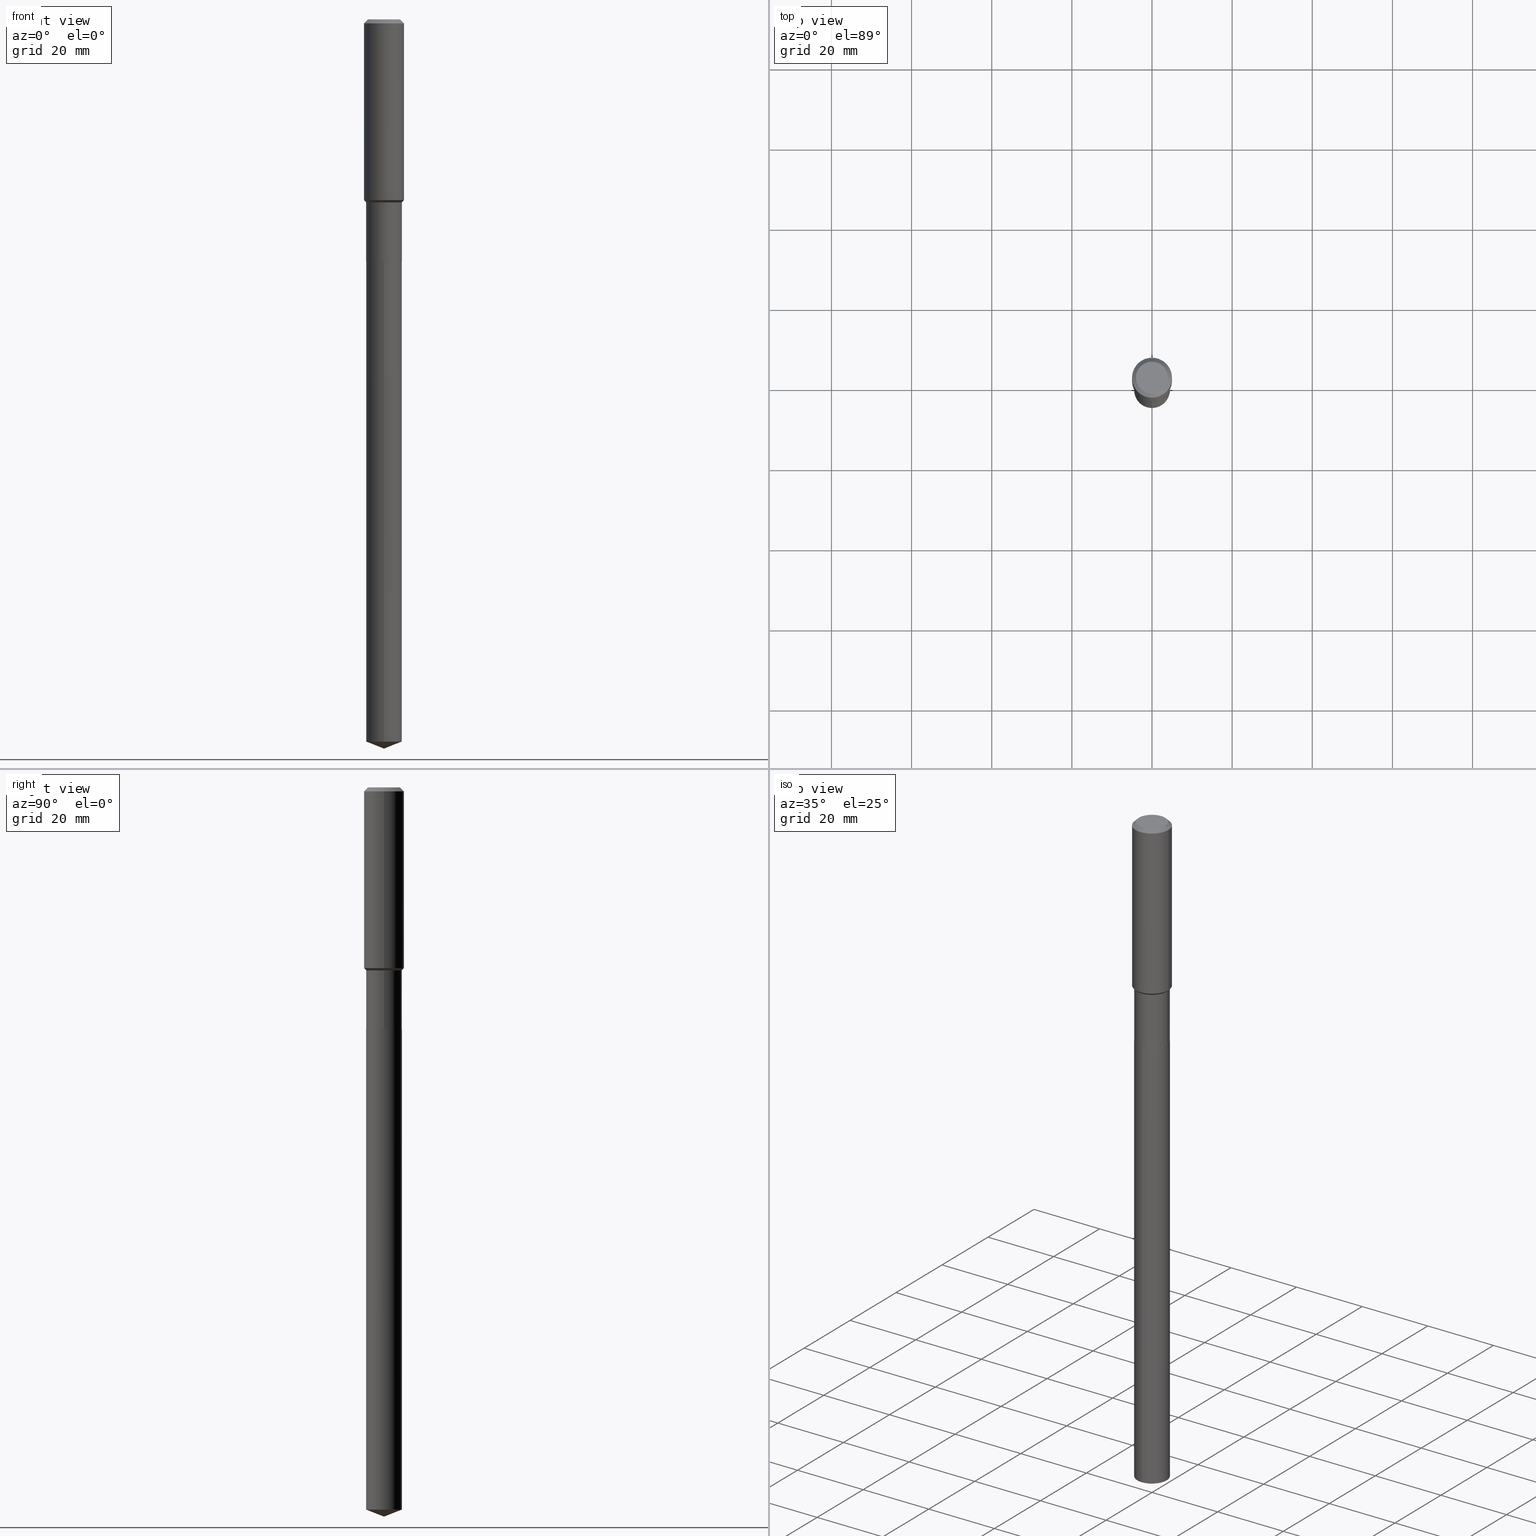
[diagram: canonical four-view strip — front | top / right | iso, engineering-drawing reading convention]
A machine part, canonical four-view strip (front | top / right | iso — engineering-drawing reading convention). The complete STEP part file that produces these views, byte-faithful:
ISO-10303-21;
HEADER;
FILE_DESCRIPTION (( 'STEP AP203' ),
    '1' );
FILE_NAME ('66768.STEP',
    '2024-04-25T05:43:46',
    ( '' ),
    ( '' ),
    'SwSTEP 2.0',
    'SolidWorks 2023',
    '' );
FILE_SCHEMA (( 'CONFIG_CONTROL_DESIGN' ));
ENDSEC;

DATA;
#1 = CARTESIAN_POINT ( 'NONE',  ( -0.1968500000000000250, -1.770025428536726252E-15, -0.03937000000000024508 ) ) ;
#2 = CONICAL_SURFACE ( 'NONE', #235, 0.1968500000000000250, 0.7853981633974452814 ) ;
#3 = PERSON_AND_ORGANIZATION_ROLE ( 'classification_officer' ) ;
#4 = EDGE_CURVE ( 'NONE', #370, #41, #321, .T. ) ;
#5 = APPROVAL_DATE_TIME ( #452, #36 ) ;
#6 = FACE_OUTER_BOUND ( 'NONE', #490, .T. ) ;
#7 = CIRCLE ( 'NONE', #203, 0.1968500000000002192 ) ;
#8 = CC_DESIGN_PERSON_AND_ORGANIZATION_ASSIGNMENT ( #225, #303, ( #115 ) ) ;
#9 = APPROVAL_PERSON_ORGANIZATION ( #373, #378, #338 ) ;
#10 = EDGE_CURVE ( 'NONE', #47, #386, #188, .T. ) ;
#11 = CARTESIAN_POINT ( 'NONE',  ( 0.1751999999999999391, -7.499003619567302609E-15, -1.797399999999999887 ) ) ;
#12 = DATE_AND_TIME ( #189, #40 ) ;
#13 = DIRECTION ( 'NONE',  ( -6.982962677686265133E-15, -1.000000000000000000, 3.118547937972903315E-15 ) ) ;
#14 = FACE_OUTER_BOUND ( 'NONE', #264, .T. ) ;
#15 = CARTESIAN_POINT ( 'NONE',  ( 4.395485632237163419E-29, -6.275588558436669520E-15, -1.797399999999999887 ) ) ;
#16 = DIRECTION ( 'NONE',  ( 6.611014441532060278E-15, 0.9304175679820263500, 0.3665012267242928057 ) ) ;
#17 = PERSON_AND_ORGANIZATION_ROLE ( 'design_owner' ) ;
#18 = ORIENTED_EDGE ( 'NONE', *, *, #389, .T. ) ;
#19 = CARTESIAN_POINT ( 'NONE',  ( 0.1746999999999999942, -9.514286648347568370E-15, -2.375600000000000378 ) ) ;
#20 = CC_DESIGN_APPROVAL ( #103, ( #115 ) ) ;
#21 = EDGE_CURVE ( 'NONE', #408, #461, #274, .T. ) ;
#22 = LINE ( 'NONE', #98, #194 ) ;
#23 = ORIENTED_EDGE ( 'NONE', *, *, #99, .F. ) ;
#24 = DIRECTION ( 'NONE',  ( -2.445468806185136877E-29, 3.491481338843145188E-15, 1.000000000000000000 ) ) ;
#25 = PERSON_AND_ORGANIZATION ( #355, #244 ) ;
#26 = VECTOR ( 'NONE', #297, 39.37007874015748143 ) ;
#27 = LOCAL_TIME ( 1, 43, 46.00000000000000000, #422 ) ;
#28 = DIRECTION ( 'NONE',  ( 1.000000000000000000, -6.982962677686266711E-15, 4.876176775795935793E-29 ) ) ;
#29 = DIRECTION ( 'NONE',  ( -2.445468806185136597E-29, 3.491481338843145583E-15, 1.000000000000000000 ) ) ;
#30 = EDGE_CURVE ( 'NONE', #291, #386, #336, .T. ) ;
#31 = ORIENTED_EDGE ( 'NONE', *, *, #105, .T. ) ;
#32 = APPROVAL_STATUS ( 'not_yet_approved' ) ;
#33 = ORIENTED_EDGE ( 'NONE', *, *, #476, .F. ) ;
#34 = PERSON_AND_ORGANIZATION ( #355, #244 ) ;
#35 = EDGE_LOOP ( 'NONE', ( #23, #158, #288, #142 ) ) ;
#36 = APPROVAL ( #32, 'UNSPECIFIED' ) ;
#37 = AXIS2_PLACEMENT_3D ( 'NONE', #348, #307, #465 ) ;
#38 = CIRCLE ( 'NONE', #316, 0.1751999999999999946 ) ;
#39 = PERSON_AND_ORGANIZATION ( #355, #244 ) ;
#40 = LOCAL_TIME ( 1, 43, 46.00000000000000000, #252 ) ;
#41 = VERTEX_POINT ( 'NONE', #44 ) ;
#42 = APPROVAL_STATUS ( 'not_yet_approved' ) ;
#43 = ORIENTED_EDGE ( 'NONE', *, *, #45, .F. ) ;
#44 = CARTESIAN_POINT ( 'NONE',  ( -0.1968500000000002192, -4.801294612106955500E-15, -1.775749999999999496 ) ) ;
#45 = EDGE_CURVE ( 'NONE', #326, #116, #467, .T. ) ;
#46 = CARTESIAN_POINT ( 'NONE',  ( 9.627810689950943645E-31, -1.374596203102555315E-16, -0.03937000000000024508 ) ) ;
#47 = VERTEX_POINT ( 'NONE', #469 ) ;
#48 = CARTESIAN_POINT ( 'NONE',  ( -0.1968500000000001082, 1.398703375343757985E-15, -9.682923725166787881E-30 ) ) ;
#49 = AXIS2_PLACEMENT_3D ( 'NONE', #15, #138, #438 ) ;
#50 = AXIS2_PLACEMENT_3D ( 'NONE', #92, #304, #231 ) ;
#51 = FACE_OUTER_BOUND ( 'NONE', #420, .T. ) ;
#52 = CARTESIAN_POINT ( 'NONE',  ( 4.395485632237163419E-29, -6.275588558436669520E-15, -1.797399999999999887 ) ) ;
#53 = DIRECTION ( 'NONE',  ( 2.445468806185136597E-29, -3.491481338843145583E-15, -1.000000000000000000 ) ) ;
#54 = DIRECTION ( 'NONE',  ( -2.445468806185136597E-29, 3.491481338843145583E-15, 1.000000000000000000 ) ) ;
#55 = MANIFOLD_SOLID_BREP ( 'Body-Move/Copy2[1]', #168 ) ;
#56 = DIRECTION ( 'NONE',  ( -2.438088387897960049E-29, 3.491481338843145188E-15, 1.000000000000000000 ) ) ;
#57 = DIRECTION ( 'NONE',  ( 2.445468806185136597E-29, -3.491481338843145583E-15, -1.000000000000000000 ) ) ;
#58 = AXIS2_PLACEMENT_3D ( 'NONE', #357, #312, #64 ) ;
#59 = CYLINDRICAL_SURFACE ( 'NONE', #433, 0.1968500000000001082 ) ;
#60 = FACE_OUTER_BOUND ( 'NONE', #464, .T. ) ;
#61 = DIRECTION ( 'NONE',  ( 1.000000000000000000, -6.982962677686265922E-15, 0.000000000000000000 ) ) ;
#62 = DIRECTION ( 'NONE',  ( 0.000000000000000000, 0.000000000000000000, 1.000000000000000000 ) ) ;
#63 = DIRECTION ( 'NONE',  ( 1.000000000000000000, -6.982962677686265922E-15, 4.876176775795935793E-29 ) ) ;
#64 = DIRECTION ( 'NONE',  ( -6.982962677686265133E-15, -1.000000000000000000, 3.118547937972903315E-15 ) ) ;
#65 = ORIENTED_EDGE ( 'NONE', *, *, #234, .T. ) ;
#66 = DIRECTION ( 'NONE',  ( -6.982962677686265133E-15, -1.000000000000000000, 3.118547937972903315E-15 ) ) ;
#67 = DIRECTION ( 'NONE',  ( -2.445468806185136597E-29, 3.491481338843145583E-15, 1.000000000000000000 ) ) ;
#68 = AXIS2_PLACEMENT_3D ( 'NONE', #208, #391, #13 ) ;
#69 = VERTEX_POINT ( 'NONE', #392 ) ;
#70 = ORIENTED_EDGE ( 'NONE', *, *, #205, .F. ) ;
#71 = CC_DESIGN_DATE_AND_TIME_ASSIGNMENT ( #80, #379, ( #87 ) ) ;
#72 = CARTESIAN_POINT ( 'NONE',  ( 0.1968500000000000250, -1.487948651171581601E-15, -0.03937000000000024508 ) ) ;
#73 = CARTESIAN_POINT ( 'NONE',  ( 5.809455695973411003E-29, -8.294363068555777500E-15, -2.375600000000000378 ) ) ;
#74 = APPLICATION_PROTOCOL_DEFINITION ( 'international standard', 'config_control_design', 1994, #334 ) ;
#75 = EDGE_CURVE ( 'NONE', #113, #370, #395, .T. ) ;
#76 = FACE_OUTER_BOUND ( 'NONE', #35, .T. ) ;
#77 = AXIS2_PLACEMENT_3D ( 'NONE', #305, #430, #101 ) ;
#78 = FACE_OUTER_BOUND ( 'NONE', #340, .T. ) ;
#79 = ORIENTED_EDGE ( 'NONE', *, *, #234, .F. ) ;
#80 = DATE_AND_TIME ( #156, #27 ) ;
#81 = EDGE_CURVE ( 'NONE', #461, #372, #38, .T. ) ;
#82 = ORIENTED_EDGE ( 'NONE', *, *, #296, .F. ) ;
#83 = PERSON_AND_ORGANIZATION ( #355, #244 ) ;
#84 = PRODUCT_DEFINITION_SHAPE ( 'NONE', 'NONE',  #131 ) ;
#85 = APPLICATION_CONTEXT ( 'configuration controlled 3d designs of mechanical parts and assemblies' ) ;
#86 = AXIS2_PLACEMENT_3D ( 'NONE', #475, #352, #233 ) ;
#87 = SECURITY_CLASSIFICATION ( '', '', #251 ) ;
#88 = APPROVAL_ROLE ( '' ) ;
#89 = DIRECTION ( 'NONE',  ( -2.445443136615839806E-29, 3.491518099127399075E-15, 1.000000000000000000 ) ) ;
#90 = FACE_OUTER_BOUND ( 'NONE', #177, .T. ) ;
#91 = APPROVAL_DATE_TIME ( #456, #378 ) ;
#92 = CARTESIAN_POINT ( 'NONE',  ( -7.875562778866199937E-28, 1.124447026328141436E-13, 32.20507874015748229 ) ) ;
#93 = ORIENTED_EDGE ( 'NONE', *, *, #228, .T. ) ;
#94 = DIRECTION ( 'NONE',  ( -2.445468806185136597E-29, 3.491481338843145583E-15, 1.000000000000000000 ) ) ;
#95 = EDGE_LOOP ( 'NONE', ( #250, #193 ) ) ;
#96 = CARTESIAN_POINT ( 'NONE',  ( -1.223415061130575699E-15, -0.1752000000000082935, -2.375599999999999490 ) ) ;
#97 = CIRCLE ( 'NONE', #276, 0.1574800000000000089 ) ;
#98 = CARTESIAN_POINT ( 'NONE',  ( 0.1751999999999999391, -7.499003619567302609E-15, -1.797399999999999887 ) ) ;
#99 = EDGE_CURVE ( 'NONE', #41, #116, #119, .T. ) ;
#100 = PLANE ( 'NONE',  #86 ) ;
#101 = DIRECTION ( 'NONE',  ( 1.000000000000000000, -6.982962677686265922E-15, 0.000000000000000000 ) ) ;
#102 = VECTOR ( 'NONE', #331, 39.37007874015748143 ) ;
#103 = APPROVAL ( #341, 'UNSPECIFIED' ) ;
#104 = ORIENTED_EDGE ( 'NONE', *, *, #296, .T. ) ;
#105 = EDGE_CURVE ( 'NONE', #265, #372, #187, .T. ) ;
#106 = DIRECTION ( 'NONE',  ( -2.445443136615840087E-29, 3.491518099127399469E-15, 1.000000000000000000 ) ) ;
#107 = LINE ( 'NONE', #399, #324 ) ;
#108 = CARTESIAN_POINT ( 'NONE',  ( 5.809455695973411003E-29, -8.294363068555777500E-15, -2.375600000000000378 ) ) ;
#109 = CC_DESIGN_PERSON_AND_ORGANIZATION_ASSIGNMENT ( #39, #257, ( #115 ) ) ;
#110 = DIRECTION ( 'NONE',  ( 1.000000000000000000, -6.982962677686265922E-15, 4.876223630392693006E-29 ) ) ;
#111 = AXIS2_PLACEMENT_3D ( 'NONE', #366, #62, #323 ) ;
#112 = CARTESIAN_POINT ( 'NONE',  ( 5.808232961570318202E-29, -8.292617327886355207E-15, -2.375100000000000211 ) ) ;
#113 = VERTEX_POINT ( 'NONE', #11 ) ;
#114 = CARTESIAN_POINT ( 'NONE',  ( 0.000000000000000000, 0.000000000000000000, 0.000000000000000000 ) ) ;
#115 = PRODUCT_DEFINITION_FORMATION_WITH_SPECIFIED_SOURCE ( 'ANY', '', #120, .NOT_KNOWN. ) ;
#116 = VERTEX_POINT ( 'NONE', #1 ) ;
#117 = EDGE_CURVE ( 'NONE', #47, #113, #121, .T. ) ;
#118 = CARTESIAN_POINT ( 'NONE',  ( 4.395485632237163419E-29, -6.275588558436669520E-15, -1.797399999999999887 ) ) ;
#119 = LINE ( 'NONE', #48, #241 ) ;
#120 = PRODUCT ( '66768', '66768', '', ( #484 ) ) ;
#121 = LINE ( 'NONE', #418, #153 ) ;
#122 = CIRCLE ( 'NONE', #249, 0.1751999999999999946 ) ;
#123 = DIRECTION ( 'NONE',  ( -2.445468806185136597E-29, 3.491481338843145583E-15, 1.000000000000000000 ) ) ;
#124 = CC_DESIGN_PERSON_AND_ORGANIZATION_ASSIGNMENT ( #207, #17, ( #120 ) ) ;
#125 = EDGE_LOOP ( 'NONE', ( #417, #436, #149, #474 ) ) ;
#126 = LINE ( 'NONE', #262, #401 ) ;
#127 = DIRECTION ( 'NONE',  ( 1.000000000000000000, -6.982962677686265922E-15, 0.000000000000000000 ) ) ;
#128 = ORIENTED_EDGE ( 'NONE', *, *, #10, .T. ) ;
#129 = AXIS2_PLACEMENT_3D ( 'NONE', #181, #140, #407 ) ;
#130 = VECTOR ( 'NONE', #292, 39.37007874015748143 ) ;
#131 = PRODUCT_DEFINITION ( 'UNKNOWN', '', #115, #200 ) ;
#132 = FACE_OUTER_BOUND ( 'NONE', #328, .T. ) ;
#133 = FACE_OUTER_BOUND ( 'NONE', #385, .T. ) ;
#134 = CARTESIAN_POINT ( 'NONE',  ( -0.1751999999999999391, -6.039232070109816285E-15, -1.797399999999999887 ) ) ;
#135 = DIRECTION ( 'NONE',  ( 1.000000000000000000, -6.982962677686265922E-15, 0.000000000000000000 ) ) ;
#136 = CARTESIAN_POINT ( 'NONE',  ( 0.000000000000000000, 0.000000000000000000, 0.000000000000000000 ) ) ;
#137 = ADVANCED_FACE ( 'NONE', ( #90 ), #381, .F. ) ;
#138 = DIRECTION ( 'NONE',  ( -2.445468806185136597E-29, 3.491481338843145583E-15, 1.000000000000000000 ) ) ;
#139 = AXIS2_PLACEMENT_3D ( 'NONE', #52, #196, #400 ) ;
#140 = DIRECTION ( 'NONE',  ( -2.445443136615840087E-29, 3.491518099127399469E-15, 1.000000000000000000 ) ) ;
#141 =( GEOMETRIC_REPRESENTATION_CONTEXT ( 3 ) GLOBAL_UNCERTAINTY_ASSIGNED_CONTEXT ( ( #162 ) ) GLOBAL_UNIT_ASSIGNED_CONTEXT ( ( #213, #368, #273 ) ) REPRESENTATION_CONTEXT ( 'NONE', 'WORKASPACE' ) );
#142 = ORIENTED_EDGE ( 'NONE', *, *, #212, .F. ) ;
#143 = CC_DESIGN_PERSON_AND_ORGANIZATION_ASSIGNMENT ( #34, #3, ( #87 ) ) ;
#144 = CC_DESIGN_PERSON_AND_ORGANIZATION_ASSIGNMENT ( #415, #155, ( #131 ) ) ;
#145 = CARTESIAN_POINT ( 'NONE',  ( -9.427742298522567634E-47, 1.346031739168368355E-32, 3.855188123715870730E-18 ) ) ;
#146 = CIRCLE ( 'NONE', #222, 0.1746999999999999942 ) ;
#147 = CC_DESIGN_APPROVAL ( #378, ( #87 ) ) ;
#148 = ORIENTED_EDGE ( 'NONE', *, *, #224, .T. ) ;
#149 = ORIENTED_EDGE ( 'NONE', *, *, #426, .T. ) ;
#150 = APPLICATION_PROTOCOL_DEFINITION ( 'international standard', 'config_control_design', 1994, #85 ) ;
#151 = ORIENTED_EDGE ( 'NONE', *, *, #117, .F. ) ;
#152 = ORIENTED_EDGE ( 'NONE', *, *, #205, .T. ) ;
#153 = VECTOR ( 'NONE', #256, 39.37007874015748143 ) ;
#154 = LOCAL_TIME ( 1, 43, 46.00000000000000000, #462 ) ;
#155 = PERSON_AND_ORGANIZATION_ROLE ( 'creator' ) ;
#156 = CALENDAR_DATE ( 2024, 25, 4 ) ;
#157 = DIRECTION ( 'NONE',  ( -6.982962677686265133E-15, -1.000000000000000000, 6.237095875945806629E-15 ) ) ;
#158 = ORIENTED_EDGE ( 'NONE', *, *, #314, .T. ) ;
#159 = CARTESIAN_POINT ( 'NONE',  ( -0.1746999999999999942, -7.053044909182881925E-15, -2.375600000000000378 ) ) ;
#160 = COORDINATED_UNIVERSAL_TIME_OFFSET ( 5, 0, .BEHIND. ) ;
#161 = EDGE_LOOP ( 'NONE', ( #429, #329, #70, #82 ) ) ;
#162 = UNCERTAINTY_MEASURE_WITH_UNIT (LENGTH_MEASURE( 1.000000000000000082E-05 ), #213, 'distance_accuracy_value', 'NONE');
#163 = VECTOR ( 'NONE', #24, 39.37007874015748143 ) ;
#164 = AXIS2_PLACEMENT_3D ( 'NONE', #272, #437, #239 ) ;
#165 = DIRECTION ( 'NONE',  ( -2.445468806185136597E-29, 3.491481338843145583E-15, 1.000000000000000000 ) ) ;
#166 = ADVANCED_FACE ( 'NONE', ( #396 ), #59, .T. ) ;
#167 = DIRECTION ( 'NONE',  ( -6.497071151882113525E-15, -0.9304175679820235745, 0.3665012267242993560 ) ) ;
#168 = CLOSED_SHELL ( 'NONE', ( #411, #383, #359, #302, #454 ) ) ;
#169 = AXIS2_PLACEMENT_3D ( 'NONE', #457, #123, #192 ) ;
#170 = VERTEX_POINT ( 'NONE', #202 ) ;
#171 = DIRECTION ( 'NONE',  ( 1.000000000000000000, -6.982962677686266711E-15, 4.876176775795935793E-29 ) ) ;
#172 = LINE ( 'NONE', #325, #367 ) ;
#173 = ADVANCED_FACE ( 'NONE', ( #14 ), #387, .T. ) ;
#174 = CARTESIAN_POINT ( 'NONE',  ( 5.809455695973411003E-29, -8.294363068555777500E-15, -2.375600000000000378 ) ) ;
#175 = CARTESIAN_POINT ( 'NONE',  ( -0.1751999999999999391, -5.030717685384973836E-15, -1.797399999999999887 ) ) ;
#176 = AXIS2_PLACEMENT_3D ( 'NONE', #463, #199, #135 ) ;
#177 = EDGE_LOOP ( 'NONE', ( #446, #460 ) ) ;
#178 = PLANE ( 'NONE',  #346 ) ;
#179 = DIRECTION ( 'NONE',  ( 1.000000000000000000, -6.982962677686265922E-15, 0.000000000000000000 ) ) ;
#180 = ORIENTED_EDGE ( 'NONE', *, *, #442, .T. ) ;
#181 = CARTESIAN_POINT ( 'NONE',  ( 1.735289340526662042E-28, -2.477567931127258058E-14, -7.095986884672262462 ) ) ;
#182 = VECTOR ( 'NONE', #89, 39.37007874015748143 ) ;
#183 = AXIS2_PLACEMENT_3D ( 'NONE', #114, #258, #419 ) ;
#184 = LINE ( 'NONE', #327, #130 ) ;
#185 = ADVANCED_FACE ( 'NONE', ( #263 ), #275, .T. ) ;
#186 = ORIENTED_EDGE ( 'NONE', *, *, #476, .T. ) ;
#187 = LINE ( 'NONE', #455, #102 ) ;
#188 = CIRCLE ( 'NONE', #361, 0.1752000000000000501 ) ;
#189 = CALENDAR_DATE ( 2024, 25, 4 ) ;
#190 = CARTESIAN_POINT ( 'NONE',  ( 0.1968500000000000250, -1.512055823412797189E-15, -0.03937000000000024508 ) ) ;
#191 = CALENDAR_DATE ( 2024, 25, 4 ) ;
#192 = DIRECTION ( 'NONE',  ( 1.000000000000000000, -6.982962677686265922E-15, 0.000000000000000000 ) ) ;
#193 = ORIENTED_EDGE ( 'NONE', *, *, #473, .T. ) ;
#194 = VECTOR ( 'NONE', #232, 39.37007874015748143 ) ;
#195 = CIRCLE ( 'NONE', #443, 0.1752000000000000501 ) ;
#196 = DIRECTION ( 'NONE',  ( -2.445468806185136597E-29, 3.491481338843145583E-15, 1.000000000000000000 ) ) ;
#197 = ADVANCED_FACE ( 'NONE', ( #266 ), #377, .T. ) ;
#198 = DIRECTION ( 'NONE',  ( -2.445468806185136597E-29, 3.491481338843145583E-15, 1.000000000000000000 ) ) ;
#199 = DIRECTION ( 'NONE',  ( -2.445468806185136597E-29, 3.491481338843145583E-15, 1.000000000000000000 ) ) ;
#200 = DESIGN_CONTEXT ( 'detailed design', #334, 'design' ) ;
#201 = PRODUCT_RELATED_PRODUCT_CATEGORY ( 'detail', '', ( #120 ) ) ;
#202 = CARTESIAN_POINT ( 'NONE',  ( 1.752160007385249322E-28, -2.501672718024781539E-14, -7.165000000000000036 ) ) ;
#203 = AXIS2_PLACEMENT_3D ( 'NONE', #347, #414, #375 ) ;
#204 = CARTESIAN_POINT ( 'NONE',  ( -0.1574800000000000089, 1.168406772637159618E-15, 3.855188123707939751E-18 ) ) ;
#205 = EDGE_CURVE ( 'NONE', #219, #41, #458, .T. ) ;
#206 = FACE_OUTER_BOUND ( 'NONE', #95, .T. ) ;
#207 = PERSON_AND_ORGANIZATION ( #355, #244 ) ;
#208 = CARTESIAN_POINT ( 'NONE',  ( 5.809455695973411003E-29, -8.294363068555777500E-15, -2.375600000000000378 ) ) ;
#209 = LINE ( 'NONE', #19, #268 ) ;
#210 = DIRECTION ( 'NONE',  ( -2.445468806185136597E-29, 3.491481338843145583E-15, 1.000000000000000000 ) ) ;
#211 = CIRCLE ( 'NONE', #300, 0.1746999999999999942 ) ;
#212 = EDGE_CURVE ( 'NONE', #116, #326, #345, .T. ) ;
#213 =( CONVERSION_BASED_UNIT ( 'INCH', #472 ) LENGTH_UNIT ( ) NAMED_UNIT ( #369 ) );
#214 = CYLINDRICAL_SURFACE ( 'NONE', #333, 0.1968500000000001082 ) ;
#215 = EDGE_CURVE ( 'NONE', #170, #265, #126, .T. ) ;
#216 = AXIS2_PLACEMENT_3D ( 'NONE', #118, #423, #339 ) ;
#217 = VERTEX_POINT ( 'NONE', #425 ) ;
#218 = ORIENTED_EDGE ( 'NONE', *, *, #332, .T. ) ;
#219 = VERTEX_POINT ( 'NONE', #466 ) ;
#220 = CARTESIAN_POINT ( 'NONE',  ( -0.1746999999999999942, -7.050395682008770724E-15, -2.375600000000000378 ) ) ;
#221 = ORIENTED_EDGE ( 'NONE', *, *, #215, .T. ) ;
#222 = AXIS2_PLACEMENT_3D ( 'NONE', #245, #29, #61 ) ;
#223 = APPROVAL_PERSON_ORGANIZATION ( #83, #103, #88 ) ;
#224 = EDGE_CURVE ( 'NONE', #370, #113, #450, .T. ) ;
#225 = PERSON_AND_ORGANIZATION ( #355, #244 ) ;
#226 = SHAPE_DEFINITION_REPRESENTATION ( #84, #364 ) ;
#227 = ORIENTED_EDGE ( 'NONE', *, *, #215, .F. ) ;
#228 = EDGE_CURVE ( 'NONE', #371, #116, #172, .T. ) ;
#229 = ORIENTED_EDGE ( 'NONE', *, *, #442, .F. ) ;
#230 = CC_DESIGN_APPROVAL ( #36, ( #131 ) ) ;
#231 = DIRECTION ( 'NONE',  ( -6.982962677686268288E-15, -1.000000000000000000, 3.498627837350029860E-15 ) ) ;
#232 = DIRECTION ( 'NONE',  ( 0.7071067811865469066, -2.468850131082250355E-15, 0.7071067811865481278 ) ) ;
#233 = DIRECTION ( 'NONE',  ( -1.000000000000000000, 6.982962677686265922E-15, -4.876176775795935793E-29 ) ) ;
#234 = EDGE_CURVE ( 'NONE', #408, #265, #427, .T. ) ;
#235 = AXIS2_PLACEMENT_3D ( 'NONE', #277, #57, #441 ) ;
#236 = APPROVAL_PERSON_ORGANIZATION ( #25, #36, #330 ) ;
#237 = DIRECTION ( 'NONE',  ( 1.000000000000000000, -6.982962677686266711E-15, 0.000000000000000000 ) ) ;
#238 = CYLINDRICAL_SURFACE ( 'NONE', #68, 0.1751999999999999946 ) ;
#239 = DIRECTION ( 'NONE',  ( -6.982962677686268288E-15, -1.000000000000000000, 3.498627837350029860E-15 ) ) ;
#240 = EDGE_CURVE ( 'NONE', #291, #217, #211, .T. ) ;
#241 = VECTOR ( 'NONE', #254, 39.37007874015748143 ) ;
#242 = AXIS2_PLACEMENT_3D ( 'NONE', #46, #394, #351 ) ;
#243 = DIRECTION ( 'NONE',  ( -0.7071067811865453523, 2.468850131082234184E-15, -0.7071067811865496822 ) ) ;
#244 = ORGANIZATION ( 'UNSPECIFIED', 'UNSPECIFIED', '' ) ;
#245 = CARTESIAN_POINT ( 'NONE',  ( 5.809455695973411003E-29, -8.294363068555777500E-15, -2.375600000000000378 ) ) ;
#246 = ORIENTED_EDGE ( 'NONE', *, *, #426, .F. ) ;
#247 = ORIENTED_EDGE ( 'NONE', *, *, #21, .T. ) ;
#248 = EDGE_CURVE ( 'NONE', #219, #326, #478, .T. ) ;
#249 = AXIS2_PLACEMENT_3D ( 'NONE', #299, #335, #157 ) ;
#250 = ORIENTED_EDGE ( 'NONE', *, *, #448, .T. ) ;
#251 = SECURITY_CLASSIFICATION_LEVEL ( 'unclassified' ) ;
#252 = COORDINATED_UNIVERSAL_TIME_OFFSET ( 5, 0, .BEHIND. ) ;
#253 = EDGE_CURVE ( 'NONE', #372, #461, #283, .T. ) ;
#254 = DIRECTION ( 'NONE',  ( -2.445468806185136877E-29, 3.491481338843145188E-15, 1.000000000000000000 ) ) ;
#255 = AXIS2_PLACEMENT_3D ( 'NONE', #174, #56, #63 ) ;
#256 = DIRECTION ( 'NONE',  ( -2.445468806185136877E-29, 3.491481338843145188E-15, 1.000000000000000000 ) ) ;
#257 = PERSON_AND_ORGANIZATION_ROLE ( 'design_supplier' ) ;
#258 = DIRECTION ( 'NONE',  ( -2.445468806185136597E-29, 3.491481338843145583E-15, 1.000000000000000000 ) ) ;
#259 = EDGE_LOOP ( 'NONE', ( #393, #186, #482, #318 ) ) ;
#260 = ORIENTED_EDGE ( 'NONE', *, *, #117, .T. ) ;
#261 = ORIENTED_EDGE ( 'NONE', *, *, #248, .F. ) ;
#262 = CARTESIAN_POINT ( 'NONE',  ( 1.752172310456640097E-28, -2.501655252478527063E-14, -7.165000000000000036 ) ) ;
#263 = FACE_OUTER_BOUND ( 'NONE', #161, .T. ) ;
#264 = EDGE_LOOP ( 'NONE', ( #424, #409, #488, #246 ) ) ;
#265 = VERTEX_POINT ( 'NONE', #445 ) ;
#266 = FACE_OUTER_BOUND ( 'NONE', #337, .T. ) ;
#267 = VECTOR ( 'NONE', #479, 39.37007874015748143 ) ;
#268 = VECTOR ( 'NONE', #444, 39.37007874015748143 ) ;
#269 = CYLINDRICAL_SURFACE ( 'NONE', #58, 0.1751999999999999946 ) ;
#270 = ORIENTED_EDGE ( 'NONE', *, *, #105, .F. ) ;
#271 = EDGE_CURVE ( 'NONE', #217, #291, #146, .T. ) ;
#272 = CARTESIAN_POINT ( 'NONE',  ( -7.875562778866199937E-28, 1.124447026328141436E-13, 32.20507874015748229 ) ) ;
#273 =( NAMED_UNIT ( * ) SI_UNIT ( $, .STERADIAN. ) SOLID_ANGLE_UNIT ( ) );
#274 = LINE ( 'NONE', #96, #182 ) ;
#275 = CONICAL_SURFACE ( 'NONE', #37, 0.1751999999999999391, 0.7853981633974473908 ) ;
#276 = AXIS2_PLACEMENT_3D ( 'NONE', #406, #210, #287 ) ;
#277 = CARTESIAN_POINT ( 'NONE',  ( 9.627810689950943645E-31, -1.374596203102555315E-16, -0.03937000000000024508 ) ) ;
#278 = ORIENTED_EDGE ( 'NONE', *, *, #253, .F. ) ;
#279 = ADVANCED_FACE ( 'NONE', ( #206 ), #100, .F. ) ;
#280 = CARTESIAN_POINT ( 'NONE',  ( 1.244870873051869629E-15, 0.1751999999999916957, -2.375600000000000822 ) ) ;
#281 = DIRECTION ( 'NONE',  ( 2.445443136615840087E-29, -3.491518099127399075E-15, -1.000000000000000000 ) ) ;
#282 = ORIENTED_EDGE ( 'NONE', *, *, #224, .F. ) ;
#283 = CIRCLE ( 'NONE', #483, 0.1751999999999999946 ) ;
#284 = CC_DESIGN_DATE_AND_TIME_ASSIGNMENT ( #12, #295, ( #131 ) ) ;
#285 =( LENGTH_UNIT ( ) NAMED_UNIT ( * ) SI_UNIT ( $, .METRE. ) );
#286 = DIRECTION ( 'NONE',  ( -6.982962677686265133E-15, -1.000000000000000000, 3.118547937972903315E-15 ) ) ;
#287 = DIRECTION ( 'NONE',  ( 1.000000000000000000, -6.982962677686265922E-15, 4.876223630392693006E-29 ) ) ;
#288 = ORIENTED_EDGE ( 'NONE', *, *, #248, .T. ) ;
#289 = ORIENTED_EDGE ( 'NONE', *, *, #81, .F. ) ;
#290 = ADVANCED_FACE ( 'NONE', ( #358 ), #2, .T. ) ;
#291 = VERTEX_POINT ( 'NONE', #220 ) ;
#292 = DIRECTION ( 'NONE',  ( -2.445468806185136877E-29, 3.491481338843145188E-15, 1.000000000000000000 ) ) ;
#293 = EDGE_LOOP ( 'NONE', ( #152, #470, #43, #261 ) ) ;
#294 = CALENDAR_DATE ( 2024, 25, 4 ) ;
#295 = DATE_TIME_ROLE ( 'creation_date' ) ;
#296 = EDGE_CURVE ( 'NONE', #113, #219, #22, .T. ) ;
#297 = DIRECTION ( 'NONE',  ( -0.7071067811866682540, 7.493145998870789611E-15, 0.7071067811864267805 ) ) ;
#298 = CALENDAR_DATE ( 2024, 25, 4 ) ;
#299 = CARTESIAN_POINT ( 'NONE',  ( 1.735289340526662042E-28, -2.477567931127258058E-14, -7.095986884672262462 ) ) ;
#300 = AXIS2_PLACEMENT_3D ( 'NONE', #108, #362, #179 ) ;
#301 = CC_DESIGN_SECURITY_CLASSIFICATION ( #87, ( #115 ) ) ;
#302 = ADVANCED_FACE ( 'NONE', ( #471 ), #238, .T. ) ;
#303 = PERSON_AND_ORGANIZATION_ROLE ( 'creator' ) ;
#304 = DIRECTION ( 'NONE',  ( -2.445443136615840087E-29, 3.491518099127399469E-15, 1.000000000000000000 ) ) ;
#305 = CARTESIAN_POINT ( 'NONE',  ( 9.627810689950943645E-31, -1.374596203102555315E-16, -0.03937000000000024508 ) ) ;
#306 = ORIENTED_EDGE ( 'NONE', *, *, #448, .F. ) ;
#307 = DIRECTION ( 'NONE',  ( -2.445468806185136597E-29, 3.491481338843145583E-15, 1.000000000000000000 ) ) ;
#308 = CYLINDRICAL_SURFACE ( 'NONE', #317, 0.1752000000000000224 ) ;
#309 = AXIS2_PLACEMENT_3D ( 'NONE', #360, #313, #127 ) ;
#310 = ADVANCED_FACE ( 'NONE', ( #133 ), #322, .T. ) ;
#311 = CARTESIAN_POINT ( 'NONE',  ( 0.000000000000000000, 0.000000000000000000, 0.000000000000000000 ) ) ;
#312 = DIRECTION ( 'NONE',  ( -2.445443136615840087E-29, 3.491518099127399469E-15, 1.000000000000000000 ) ) ;
#313 = DIRECTION ( 'NONE',  ( -2.445468806185136597E-29, 3.491481338843145583E-15, 1.000000000000000000 ) ) ;
#314 = EDGE_CURVE ( 'NONE', #41, #219, #7, .T. ) ;
#315 = CLOSED_SHELL ( 'NONE', ( #173, #290, #166, #185, #350, #365, #310, #435, #197, #279, #137, #343 ) ) ;
#316 = AXIS2_PLACEMENT_3D ( 'NONE', #319, #106, #66 ) ;
#317 = AXIS2_PLACEMENT_3D ( 'NONE', #136, #54, #171 ) ;
#318 = ORIENTED_EDGE ( 'NONE', *, *, #228, .F. ) ;
#319 = CARTESIAN_POINT ( 'NONE',  ( 5.809455695973411003E-29, -8.294363068555777500E-15, -2.375600000000000378 ) ) ;
#320 = CARTESIAN_POINT ( 'NONE',  ( 5.809455695973411003E-29, -8.294363068555777500E-15, -2.375600000000000378 ) ) ;
#321 = LINE ( 'NONE', #175, #267 ) ;
#322 = CONICAL_SURFACE ( 'NONE', #216, 0.1751999999999999391, 0.7853981633974473908 ) ;
#323 = DIRECTION ( 'NONE',  ( 1.000000000000000000, 0.000000000000000000, 0.000000000000000000 ) ) ;
#324 = VECTOR ( 'NONE', #167, 39.37007874015748143 ) ;
#325 = CARTESIAN_POINT ( 'NONE',  ( -0.1968500000000000250, 1.237136582792286225E-15, -0.03937000000000024508 ) ) ;
#326 = VERTEX_POINT ( 'NONE', #190 ) ;
#327 = CARTESIAN_POINT ( 'NONE',  ( -0.1752000000000000224, 1.244870873051695685E-15, -8.617974278126595775E-30 ) ) ;
#328 = EDGE_LOOP ( 'NONE', ( #65, #31, #289, #486 ) ) ;
#329 = ORIENTED_EDGE ( 'NONE', *, *, #4, .T. ) ;
#330 = APPROVAL_ROLE ( '' ) ;
#331 = DIRECTION ( 'NONE',  ( -2.445443136615839806E-29, 3.491518099127399075E-15, 1.000000000000000000 ) ) ;
#332 = EDGE_CURVE ( 'NONE', #265, #408, #122, .T. ) ;
#333 = AXIS2_PLACEMENT_3D ( 'NONE', #485, #67, #28 ) ;
#334 = APPLICATION_CONTEXT ( 'configuration controlled 3d designs of mechanical parts and assemblies' ) ;
#335 = DIRECTION ( 'NONE',  ( -2.445443136615840087E-29, 3.491518099127399469E-15, 1.000000000000000000 ) ) ;
#336 = LINE ( 'NONE', #159, #26 ) ;
#337 = EDGE_LOOP ( 'NONE', ( #33, #306, #93, #421 ) ) ;
#338 = APPROVAL_ROLE ( '' ) ;
#339 = DIRECTION ( 'NONE',  ( 1.000000000000000000, -6.982962677686265133E-15, 0.000000000000000000 ) ) ;
#340 = EDGE_LOOP ( 'NONE', ( #354, #413 ) ) ;
#341 = APPROVAL_STATUS ( 'not_yet_approved' ) ;
#342 = FACE_OUTER_BOUND ( 'NONE', #451, .T. ) ;
#343 = ADVANCED_FACE ( 'NONE', ( #380 ), #434, .T. ) ;
#344 = DIRECTION ( 'NONE',  ( -1.000000000000000000, 6.982962677686265922E-15, 0.000000000000000000 ) ) ;
#345 = CIRCLE ( 'NONE', #77, 0.1968500000000000250 ) ;
#346 = AXIS2_PLACEMENT_3D ( 'NONE', #320, #281, #477 ) ;
#347 = CARTESIAN_POINT ( 'NONE',  ( 4.342541232583255428E-29, -6.199997987450713288E-15, -1.775749999999999496 ) ) ;
#348 = CARTESIAN_POINT ( 'NONE',  ( 4.395485632237163419E-29, -6.275588558436669520E-15, -1.797399999999999887 ) ) ;
#349 = ORIENTED_EDGE ( 'NONE', *, *, #75, .F. ) ;
#350 = ADVANCED_FACE ( 'NONE', ( #342 ), #356, .T. ) ;
#351 = DIRECTION ( 'NONE',  ( 1.000000000000000000, -6.982962677686265922E-15, 0.000000000000000000 ) ) ;
#352 = DIRECTION ( 'NONE',  ( 2.438088387897960049E-29, -3.491481338843145188E-15, -1.000000000000000000 ) ) ;
#353 = AXIS2_PLACEMENT_3D ( 'NONE', #390, #53, #344 ) ;
#354 = ORIENTED_EDGE ( 'NONE', *, *, #81, .T. ) ;
#355 = PERSON ( 'UNSPECIFIED', 'UNSPECIFIED', 'UNSPECIFIED', ('UNSPECIFIED'), ('UNSPECIFIED'), ('UNSPECIFIED') ) ;
#356 = CYLINDRICAL_SURFACE ( 'NONE', #183, 0.1752000000000000224 ) ;
#357 = CARTESIAN_POINT ( 'NONE',  ( 5.809455695973411003E-29, -8.294363068555777500E-15, -2.375600000000000378 ) ) ;
#358 = FACE_OUTER_BOUND ( 'NONE', #259, .T. ) ;
#359 = ADVANCED_FACE ( 'NONE', ( #6 ), #397, .T. ) ;
#360 = CARTESIAN_POINT ( 'NONE',  ( 5.809455695973411003E-29, -8.294363068555777500E-15, -2.375600000000000378 ) ) ;
#361 = AXIS2_PLACEMENT_3D ( 'NONE', #112, #94, #431 ) ;
#362 = DIRECTION ( 'NONE',  ( -2.445468806185136597E-29, 3.491481338843145583E-15, 1.000000000000000000 ) ) ;
#363 = DIRECTION ( 'NONE',  ( 0.7071067811865453523, -7.319954787623248157E-15, -0.7071067811865496822 ) ) ;
#364 = ADVANCED_BREP_SHAPE_REPRESENTATION ( '66768', ( #55, #376, #111 ), #141 ) ;
#365 = ADVANCED_FACE ( 'NONE', ( #51 ), #308, .T. ) ;
#366 = CARTESIAN_POINT ( 'NONE',  ( 0.000000000000000000, 0.000000000000000000, 0.000000000000000000 ) ) ;
#367 = VECTOR ( 'NONE', #243, 39.37007874015748143 ) ;
#368 =( NAMED_UNIT ( * ) PLANE_ANGLE_UNIT ( ) SI_UNIT ( $, .RADIAN. ) );
#369 = DIMENSIONAL_EXPONENTS ( 1.000000000000000000, 0.000000000000000000, 0.000000000000000000, 0.000000000000000000, 0.000000000000000000, 0.000000000000000000, 0.000000000000000000 ) ;
#370 = VERTEX_POINT ( 'NONE', #134 ) ;
#371 = VERTEX_POINT ( 'NONE', #204 ) ;
#372 = VERTEX_POINT ( 'NONE', #280 ) ;
#373 = PERSON_AND_ORGANIZATION ( #355, #244 ) ;
#374 = DATE_AND_TIME ( #191, #154 ) ;
#375 = DIRECTION ( 'NONE',  ( 1.000000000000000000, -6.982962677686265922E-15, 0.000000000000000000 ) ) ;
#376 = MANIFOLD_SOLID_BREP ( 'Body-Move/Copy2[2]', #315 ) ;
#377 = CONICAL_SURFACE ( 'NONE', #353, 0.1968500000000000250, 0.7853981633974452814 ) ;
#378 = APPROVAL ( #42, 'UNSPECIFIED' ) ;
#379 = DATE_TIME_ROLE ( 'classification_date' ) ;
#380 = FACE_OUTER_BOUND ( 'NONE', #125, .T. ) ;
#381 = PLANE ( 'NONE',  #255 ) ;
#382 = ORIENTED_EDGE ( 'NONE', *, *, #314, .F. ) ;
#383 = ADVANCED_FACE ( 'NONE', ( #60 ), #453, .T. ) ;
#384 = ORIENTED_EDGE ( 'NONE', *, *, #405, .F. ) ;
#385 = EDGE_LOOP ( 'NONE', ( #428, #148, #104, #382 ) ) ;
#386 = VERTEX_POINT ( 'NONE', #439 ) ;
#387 = CONICAL_SURFACE ( 'NONE', #309, 0.1746999999999999942, 0.7853981633976190313 ) ;
#388 = DIRECTION ( 'NONE',  ( 1.000000000000000000, -6.982962677686266711E-15, 4.876176775795935793E-29 ) ) ;
#389 = EDGE_CURVE ( 'NONE', #386, #47, #195, .T. ) ;
#390 = CARTESIAN_POINT ( 'NONE',  ( 9.627810689950943645E-31, -1.374596203102555315E-16, -0.03937000000000024508 ) ) ;
#391 = DIRECTION ( 'NONE',  ( -2.445443136615840087E-29, 3.491518099127399469E-15, 1.000000000000000000 ) ) ;
#392 = CARTESIAN_POINT ( 'NONE',  ( 0.1574800000000000089, -1.284169937930321189E-15, 3.855188123724205385E-18 ) ) ;
#393 = ORIENTED_EDGE ( 'NONE', *, *, #473, .F. ) ;
#394 = DIRECTION ( 'NONE',  ( -2.445468806185136597E-29, 3.491481338843145583E-15, 1.000000000000000000 ) ) ;
#395 = CIRCLE ( 'NONE', #49, 0.1751999999999999391 ) ;
#396 = FACE_OUTER_BOUND ( 'NONE', #293, .T. ) ;
#397 = CONICAL_SURFACE ( 'NONE', #50, 99.94676754583923639, 1.195550537616117071 ) ;
#398 = CARTESIAN_POINT ( 'NONE',  ( -1.223415061130459736E-15, -0.1752000000000246971, -7.095986884672260686 ) ) ;
#399 = CARTESIAN_POINT ( 'NONE',  ( 1.752160007385249322E-28, -2.501672718024781539E-14, -7.165000000000000036 ) ) ;
#400 = DIRECTION ( 'NONE',  ( 1.000000000000000000, -6.982962677686265133E-15, 0.000000000000000000 ) ) ;
#401 = VECTOR ( 'NONE', #16, 39.37007874015748143 ) ;
#402 = CIRCLE ( 'NONE', #459, 0.1574800000000000089 ) ;
#403 = LINE ( 'NONE', #72, #468 ) ;
#404 = CARTESIAN_POINT ( 'NONE',  ( 0.1968500000000001082, -1.374596203102542397E-15, 9.598753983154305062E-30 ) ) ;
#405 = EDGE_CURVE ( 'NONE', #170, #408, #107, .T. ) ;
#406 = CARTESIAN_POINT ( 'NONE',  ( -9.427742298522567634E-47, 1.346031739168368355E-32, 3.855188123715870730E-18 ) ) ;
#407 = DIRECTION ( 'NONE',  ( -6.982962677686265133E-15, -1.000000000000000000, 6.237095875945806629E-15 ) ) ;
#408 = VERTEX_POINT ( 'NONE', #398 ) ;
#409 = ORIENTED_EDGE ( 'NONE', *, *, #30, .T. ) ;
#410 = LOCAL_TIME ( 1, 43, 46.00000000000000000, #160 ) ;
#411 = ADVANCED_FACE ( 'NONE', ( #132 ), #269, .T. ) ;
#412 = APPROVAL_DATE_TIME ( #374, #103 ) ;
#413 = ORIENTED_EDGE ( 'NONE', *, *, #253, .T. ) ;
#414 = DIRECTION ( 'NONE',  ( -2.445468806185136597E-29, 3.491481338843145583E-15, 1.000000000000000000 ) ) ;
#415 = PERSON_AND_ORGANIZATION ( #355, #244 ) ;
#416 = LOCAL_TIME ( 1, 43, 46.00000000000000000, #489 ) ;
#417 = ORIENTED_EDGE ( 'NONE', *, *, #30, .F. ) ;
#418 = CARTESIAN_POINT ( 'NONE',  ( 0.1752000000000000224, -1.223415061130634074E-15, 8.543061711194480720E-30 ) ) ;
#419 = DIRECTION ( 'NONE',  ( 1.000000000000000000, -6.982962677686266711E-15, 4.876176775795935793E-29 ) ) ;
#420 = EDGE_LOOP ( 'NONE', ( #229, #18, #260, #282 ) ) ;
#421 = ORIENTED_EDGE ( 'NONE', *, *, #212, .T. ) ;
#422 = COORDINATED_UNIVERSAL_TIME_OFFSET ( 5, 0, .BEHIND. ) ;
#423 = DIRECTION ( 'NONE',  ( -2.445468806185136597E-29, 3.491481338843145583E-15, 1.000000000000000000 ) ) ;
#424 = ORIENTED_EDGE ( 'NONE', *, *, #271, .T. ) ;
#425 = CARTESIAN_POINT ( 'NONE',  ( 0.1746999999999999942, -9.514286648347568370E-15, -2.375600000000000378 ) ) ;
#426 = EDGE_CURVE ( 'NONE', #217, #47, #209, .T. ) ;
#427 = CIRCLE ( 'NONE', #129, 0.1751999999999999946 ) ;
#428 = ORIENTED_EDGE ( 'NONE', *, *, #4, .F. ) ;
#429 = ORIENTED_EDGE ( 'NONE', *, *, #75, .T. ) ;
#430 = DIRECTION ( 'NONE',  ( -2.445468806185136597E-29, 3.491481338843145583E-15, 1.000000000000000000 ) ) ;
#431 = DIRECTION ( 'NONE',  ( 1.000000000000000000, -6.982962677686266711E-15, 0.000000000000000000 ) ) ;
#432 = CARTESIAN_POINT ( 'NONE',  ( 5.808232961570318202E-29, -8.292617327886355207E-15, -2.375100000000000211 ) ) ;
#433 = AXIS2_PLACEMENT_3D ( 'NONE', #311, #165, #388 ) ;
#434 = CONICAL_SURFACE ( 'NONE', #169, 0.1746999999999999942, 0.7853981633976190313 ) ;
#435 = ADVANCED_FACE ( 'NONE', ( #76 ), #214, .T. ) ;
#436 = ORIENTED_EDGE ( 'NONE', *, *, #240, .T. ) ;
#437 = DIRECTION ( 'NONE',  ( -2.445443136615840087E-29, 3.491518099127399469E-15, 1.000000000000000000 ) ) ;
#438 = DIRECTION ( 'NONE',  ( 1.000000000000000000, -6.982962677686265133E-15, 0.000000000000000000 ) ) ;
#439 = CARTESIAN_POINT ( 'NONE',  ( -0.1752000000000000501, -6.039232070109816285E-15, -2.375100000000000211 ) ) ;
#440 = DIRECTION ( 'NONE',  ( -2.445468806185136597E-29, 3.491481338843145583E-15, 1.000000000000000000 ) ) ;
#441 = DIRECTION ( 'NONE',  ( -1.000000000000000000, 6.982962677686265922E-15, 0.000000000000000000 ) ) ;
#442 = EDGE_CURVE ( 'NONE', #386, #370, #184, .T. ) ;
#443 = AXIS2_PLACEMENT_3D ( 'NONE', #432, #198, #237 ) ;
#444 = DIRECTION ( 'NONE',  ( 0.7071067811866682540, -2.468850131083521605E-15, 0.7071067811864267805 ) ) ;
#445 = CARTESIAN_POINT ( 'NONE',  ( 1.244870873051868445E-15, 0.1751999999999751256, -7.095986884672263351 ) ) ;
#446 = ORIENTED_EDGE ( 'NONE', *, *, #271, .F. ) ;
#447 = EDGE_LOOP ( 'NONE', ( #270, #218, #247, #278 ) ) ;
#448 = EDGE_CURVE ( 'NONE', #371, #69, #97, .T. ) ;
#449 = ORIENTED_EDGE ( 'NONE', *, *, #405, .T. ) ;
#450 = CIRCLE ( 'NONE', #139, 0.1751999999999999391 ) ;
#451 = EDGE_LOOP ( 'NONE', ( #128, #180, #349, #151 ) ) ;
#452 = DATE_AND_TIME ( #294, #416 ) ;
#453 = CONICAL_SURFACE ( 'NONE', #164, 99.94676754583923639, 1.195550537616117071 ) ;
#454 = ADVANCED_FACE ( 'NONE', ( #78 ), #178, .F. ) ;
#455 = CARTESIAN_POINT ( 'NONE',  ( 1.244870873051753074E-15, 0.1751999999999916957, -2.375600000000000822 ) ) ;
#456 = DATE_AND_TIME ( #298, #410 ) ;
#457 = CARTESIAN_POINT ( 'NONE',  ( 5.809455695973411003E-29, -8.294363068555777500E-15, -2.375600000000000378 ) ) ;
#458 = CIRCLE ( 'NONE', #176, 0.1968500000000002192 ) ;
#459 = AXIS2_PLACEMENT_3D ( 'NONE', #145, #440, #110 ) ;
#460 = ORIENTED_EDGE ( 'NONE', *, *, #240, .F. ) ;
#461 = VERTEX_POINT ( 'NONE', #480 ) ;
#462 = COORDINATED_UNIVERSAL_TIME_OFFSET ( 5, 0, .BEHIND. ) ;
#463 = CARTESIAN_POINT ( 'NONE',  ( 4.342541232583255428E-29, -6.199997987450713288E-15, -1.775749999999999496 ) ) ;
#464 = EDGE_LOOP ( 'NONE', ( #384, #221, #79 ) ) ;
#465 = DIRECTION ( 'NONE',  ( 1.000000000000000000, -6.982962677686265133E-15, 0.000000000000000000 ) ) ;
#466 = CARTESIAN_POINT ( 'NONE',  ( 0.1968500000000002192, -7.574594190553257263E-15, -1.775749999999999496 ) ) ;
#467 = CIRCLE ( 'NONE', #242, 0.1968500000000000250 ) ;
#468 = VECTOR ( 'NONE', #363, 39.37007874015748143 ) ;
#469 = CARTESIAN_POINT ( 'NONE',  ( 0.1752000000000000501, -9.516032389016990662E-15, -2.375100000000000211 ) ) ;
#470 = ORIENTED_EDGE ( 'NONE', *, *, #99, .T. ) ;
#471 = FACE_OUTER_BOUND ( 'NONE', #447, .T. ) ;
#472 = LENGTH_MEASURE_WITH_UNIT ( LENGTH_MEASURE( 0.02539999999999999897 ), #285 );
#473 = EDGE_CURVE ( 'NONE', #69, #371, #402, .T. ) ;
#474 = ORIENTED_EDGE ( 'NONE', *, *, #389, .F. ) ;
#475 = CARTESIAN_POINT ( 'NONE',  ( -4.713871149261283817E-47, 6.730158695841841775E-33, 1.927594061857935365E-18 ) ) ;
#476 = EDGE_CURVE ( 'NONE', #69, #326, #403, .T. ) ;
#477 = DIRECTION ( 'NONE',  ( 6.982962677686265922E-15, 1.000000000000000000, -3.491518099127399075E-15 ) ) ;
#478 = LINE ( 'NONE', #404, #163 ) ;
#479 = DIRECTION ( 'NONE',  ( -0.7071067811865469066, 7.493145998870352582E-15, 0.7071067811865481278 ) ) ;
#480 = CARTESIAN_POINT ( 'NONE',  ( -1.223415061130575699E-15, -0.1752000000000082935, -2.375599999999999490 ) ) ;
#481 = DIRECTION ( 'NONE',  ( -2.445443136615840087E-29, 3.491518099127399469E-15, 1.000000000000000000 ) ) ;
#482 = ORIENTED_EDGE ( 'NONE', *, *, #45, .T. ) ;
#483 = AXIS2_PLACEMENT_3D ( 'NONE', #73, #481, #286 ) ;
#484 = MECHANICAL_CONTEXT ( 'NONE', #85, 'mechanical' ) ;
#485 = CARTESIAN_POINT ( 'NONE',  ( 0.000000000000000000, 0.000000000000000000, 0.000000000000000000 ) ) ;
#486 = ORIENTED_EDGE ( 'NONE', *, *, #21, .F. ) ;
#487 = ORIENTED_EDGE ( 'NONE', *, *, #332, .F. ) ;
#488 = ORIENTED_EDGE ( 'NONE', *, *, #10, .F. ) ;
#489 = COORDINATED_UNIVERSAL_TIME_OFFSET ( 5, 0, .BEHIND. ) ;
#490 = EDGE_LOOP ( 'NONE', ( #227, #449, #487 ) ) ;
ENDSEC;
END-ISO-10303-21;
